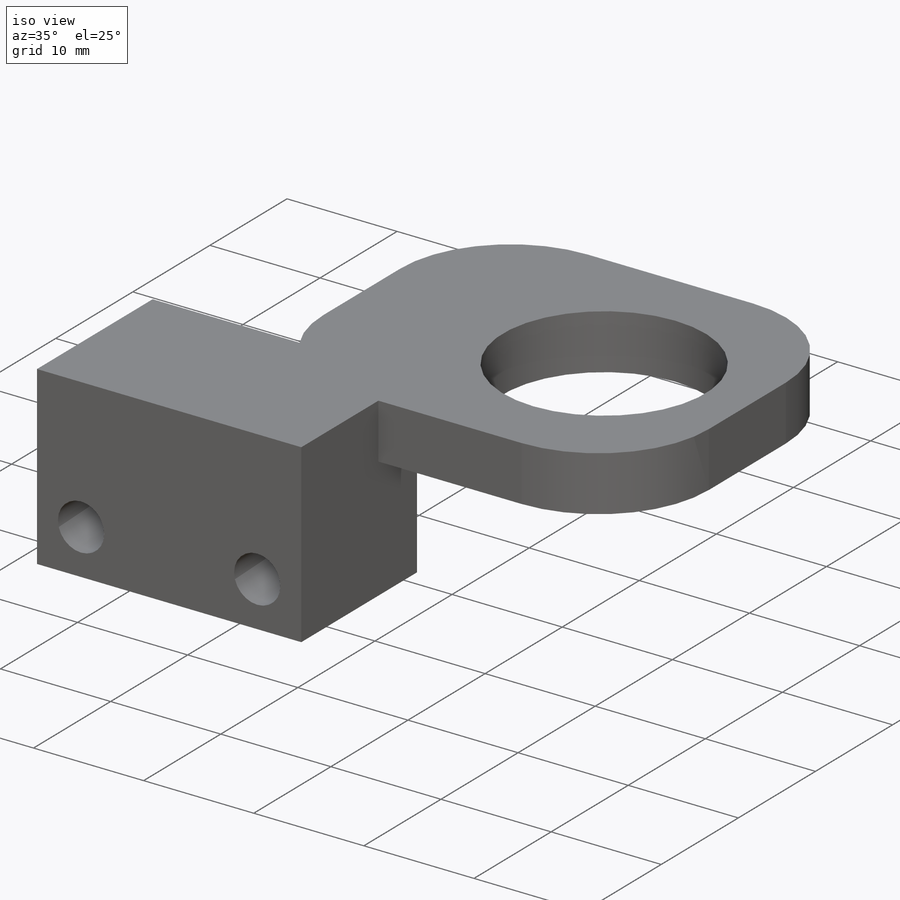
[diagram: iso view]
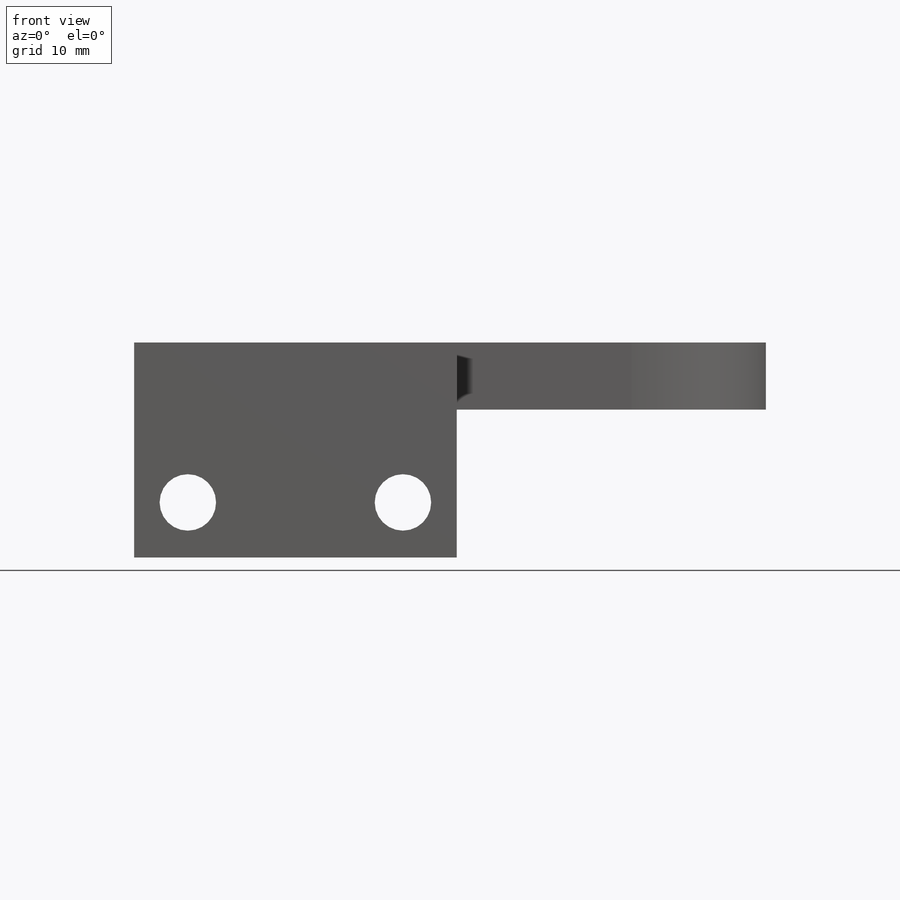
[diagram: front view]
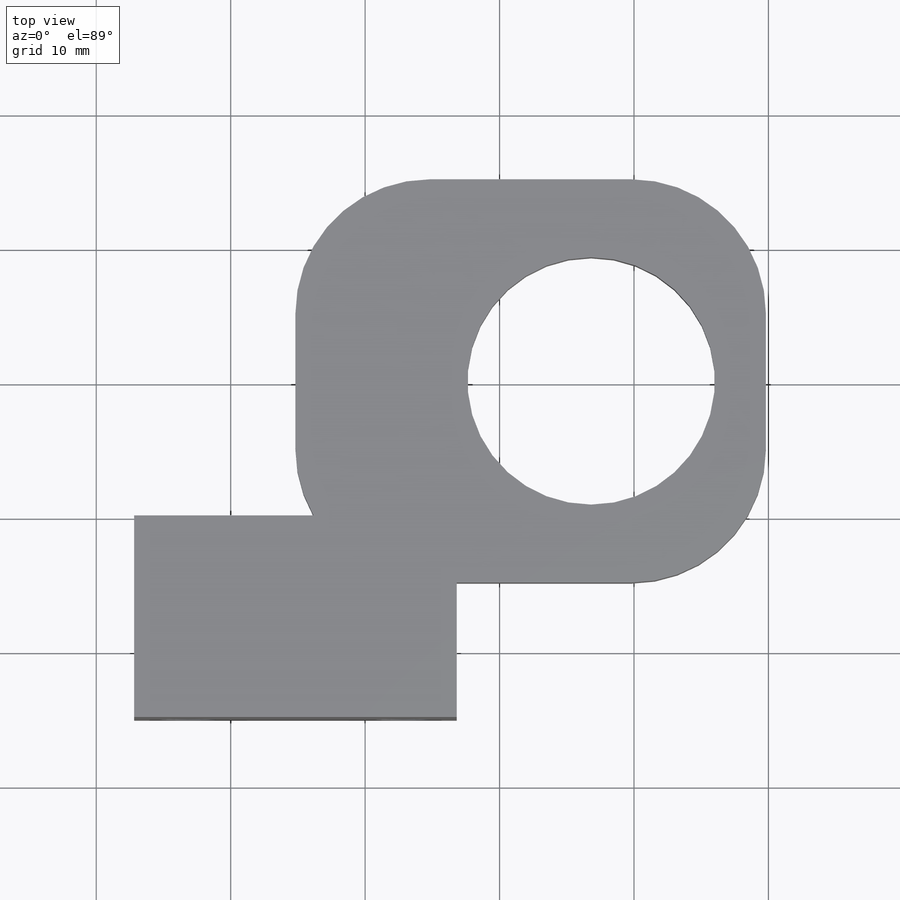
[diagram: top view]
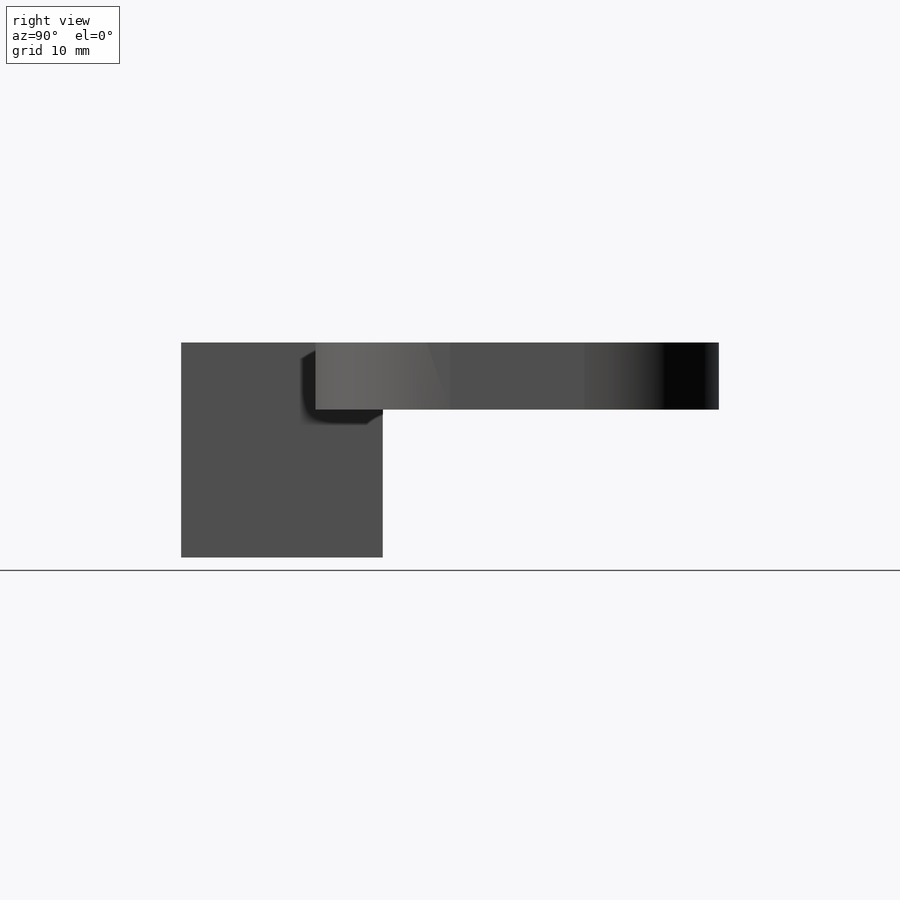
[diagram: right view]
SOLIDWORKS PART (.sldprt)
format: sldprt  version: not decoded by parser v0  size: 222,208 bytes
history: native  units: mm
features: sketch x4, plane x3, extrude x3, material x1 (+10 scaffold rows collapsed)
feature tree (21):
  scaffold x10  (default folders/planes/origin — collapsed)
  material  "Material <nicht angegeben>"
  plane  "Ebene vorne"
  plane  "Ebene oben"
  plane  "Ebene rechts"
  sketch  "Skizze1"  dims[c1.D3=4.2mm c1.D4=4.2mm c1.D6=4.2mm c1.D7=4.2mm c1.D8=4.2mm c1.D9=4.2mm c1.D1=16.0mm c1.D2=24.0mm c1.D5=4.0mm c2.D6=16.0mm c2.D7=4.0mm c2.D8=4.1mm c2.D9=4.1mm]
  extrude  "Aufsatz-Linear austragen2"  Depth=5mm
  sketch  "Skizze12"  dims[c1.D1=~9.235882mm c1.D2=~19.231501mm c1.D3=~19.231501mm c2.D1=~19.231501mm c2.D2=10.0mm c2.D4=18.4mm c2.D5=18.4mm c2.D7=18.4mm c3.D4=10.0mm c3.D2=~10.177664mm c4.D4=10.0mm c4.D1=25.0mm c4.D2=~11.22163mm c4.D3=~13.77837mm c5.D1=15.0mm c5.D2=30.0mm c5.D3=35.0mm c6.D3=5.0mm c6.D1=15.0mm c6.D2=25.0mm c6.D4=15.0mm c6.D5=15.0mm c6.D6=15.0mm c7.D1=10.0mm c7.D2=15.0mm c7.D3=25.0mm c8.D2=30.0mm c8.D3=35.0mm]
  extrude  "Aufsatz-Linear austragen6"  Depth=5mm
  sketch  "Skizze13"
  extrude  "Aufsatz-Linear austragen8"  [1 undecoded]
  sketch  "Skizze1<4>"  dims[D1=15.0mm]
decode coverage: 5 of 7 modeling features carry decoded parameters
note: ~ marks probable driven/reference dimensions
note: 1 parameter value undecoded
note: suppression state not decoded; provenance and decode notes live in map.json
